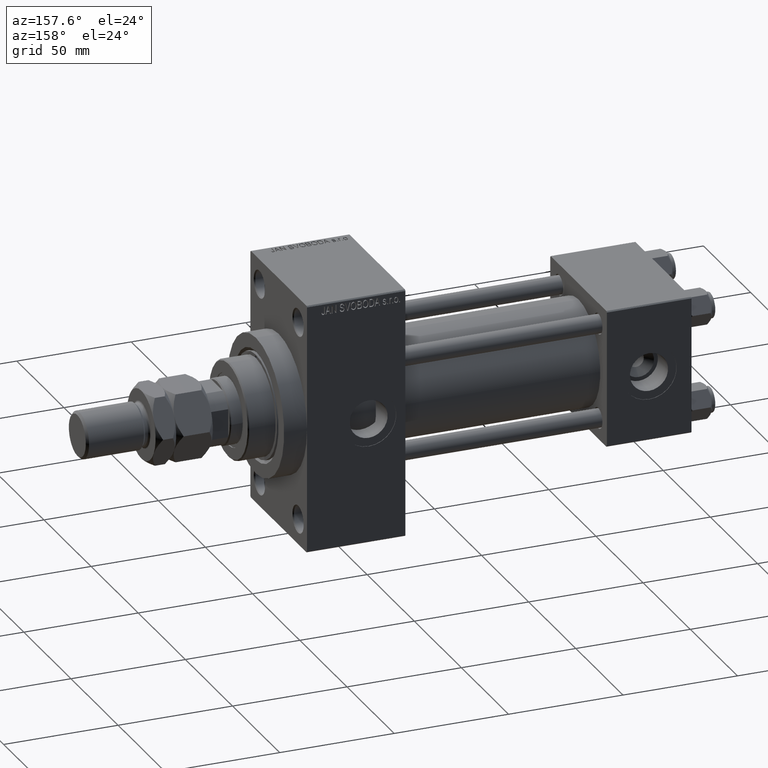
[diagram: clean part render]
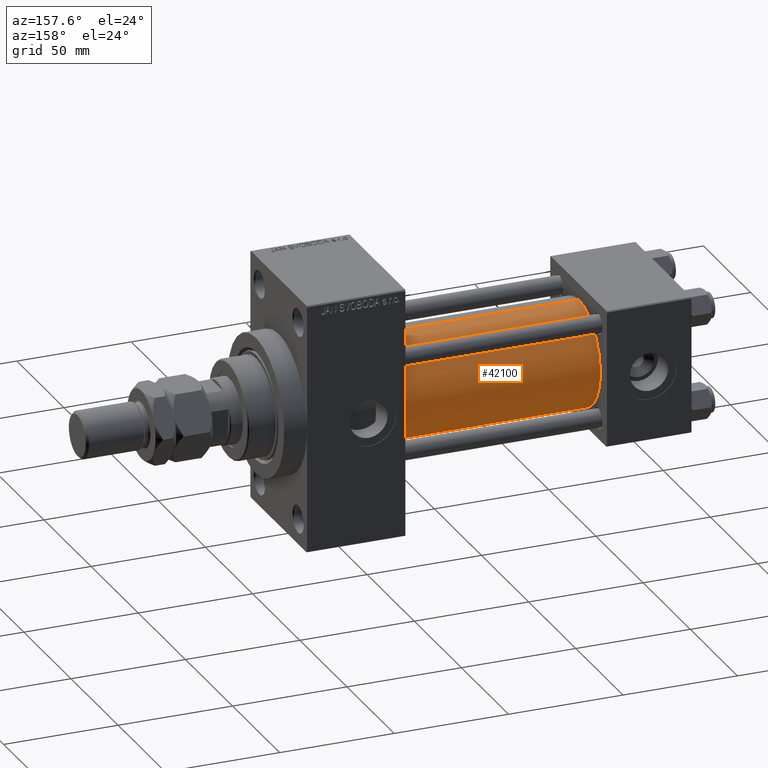
[diagram: same view with one face highlighted and labeled with its STEP entity id]
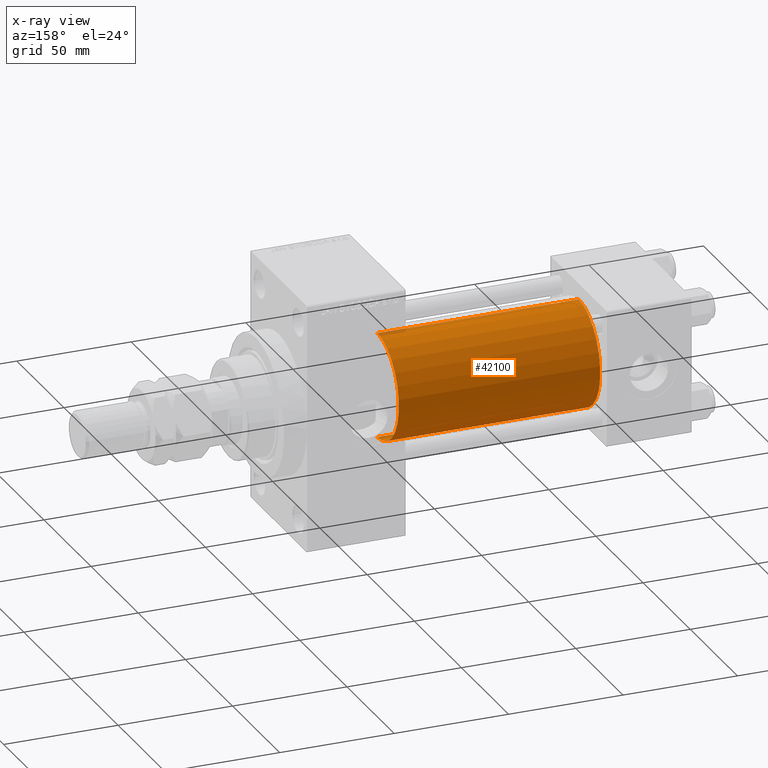
[diagram: x-ray of the same camera — body ghosted, the highlighted face saturated]
A machine part, auxiliary view. The second image highlights one B-rep face of the part: STEP entity #42100.
The next image is the same camera in x-ray: the body ghosted, the highlighted face saturated — about 1% of this face is hidden behind the body in this view.
In plain terms, the highlighted cylindrical surface (partial cylindrical patch) has radius 23 mm, axis along (-1, -0, -0).
Its self-contained STEP definition (entity closure, byte-faithful):
#1806 = DIRECTION ( 'NONE',  ( 1.000000000000000000, 0.000000000000000000, 0.000000000000000000 ) ) ;
#3795 = EDGE_CURVE ( 'NONE', #48667, #25684, #32341, .T. ) ;
#9769 = CARTESIAN_POINT ( 'NONE',  ( 125.0000000000000000, -2.602085213965210642E-15, 0.000000000000000000 ) ) ;
#10589 = EDGE_CURVE ( 'NONE', #29499, #46630, #17622, .T. ) ;
#13077 = EDGE_LOOP ( 'NONE', ( #45674, #22512, #16992, #41622 ) ) ;
#13893 = CARTESIAN_POINT ( 'NONE',  ( 125.0000000000000000, -2.602085213965210642E-15, 23.00000000000000000 ) ) ;
#14878 = DIRECTION ( 'NONE',  ( -1.000000000000000000, -0.000000000000000000, -0.000000000000000000 ) ) ;
#16992 = ORIENTED_EDGE ( 'NONE', *, *, #17514, .T. ) ;
#17514 = EDGE_CURVE ( 'NONE', #25684, #46630, #33186, .T. ) ;
#17622 = LINE ( 'NONE', #13893, #36254 ) ;
#19562 = AXIS2_PLACEMENT_3D ( 'NONE', #30458, #37671, #34928 ) ;
#19793 = FACE_OUTER_BOUND ( 'NONE', #13077, .T. ) ;
#20091 = CIRCLE ( 'NONE', #32766, 23.00000000000000000 ) ;
#20233 = DIRECTION ( 'NONE',  ( 0.000000000000000000, 0.000000000000000000, -1.000000000000000000 ) ) ;
#22512 = ORIENTED_EDGE ( 'NONE', *, *, #3795, .T. ) ;
#22871 = AXIS2_PLACEMENT_3D ( 'NONE', #48259, #44032, #25627 ) ;
#25627 = DIRECTION ( 'NONE',  ( 0.000000000000000000, 0.000000000000000000, 1.000000000000000000 ) ) ;
#25684 = VERTEX_POINT ( 'NONE', #40947 ) ;
#26484 = CYLINDRICAL_SURFACE ( 'NONE', #19562, 23.00000000000000000 ) ;
#26892 = CARTESIAN_POINT ( 'NONE',  ( 125.0000000000000000, 2.146024240737016609E-16, -23.00000000000000000 ) ) ;
#29116 = CARTESIAN_POINT ( 'NONE',  ( 125.0000000000000000, 2.146024240737016609E-16, -23.00000000000000000 ) ) ;
#29499 = VERTEX_POINT ( 'NONE', #36302 ) ;
#30458 = CARTESIAN_POINT ( 'NONE',  ( 125.0000000000000000, -2.602085213965210642E-15, 0.000000000000000000 ) ) ;
#31337 = EDGE_CURVE ( 'NONE', #48667, #29499, #20091, .T. ) ;
#32341 = LINE ( 'NONE', #29116, #39148 ) ;
#32766 = AXIS2_PLACEMENT_3D ( 'NONE', #9769, #1806, #20233 ) ;
#33186 = CIRCLE ( 'NONE', #22871, 23.00000000000000000 ) ;
#34928 = DIRECTION ( 'NONE',  ( 0.000000000000000000, 0.000000000000000000, 1.000000000000000000 ) ) ;
#36254 = VECTOR ( 'NONE', #44695, 1000.000000000000000 ) ;
#36302 = CARTESIAN_POINT ( 'NONE',  ( 125.0000000000000000, -2.602085213965210642E-15, 23.00000000000000000 ) ) ;
#37671 = DIRECTION ( 'NONE',  ( -1.000000000000000000, -0.000000000000000000, -0.000000000000000000 ) ) ;
#39148 = VECTOR ( 'NONE', #14878, 1000.000000000000000 ) ;
#40496 = CARTESIAN_POINT ( 'NONE',  ( 37.00000000000000711, -2.602085213965210642E-15, 23.00000000000000000 ) ) ;
#40947 = CARTESIAN_POINT ( 'NONE',  ( 37.00000000000000711, 2.146024240737016609E-16, -23.00000000000000000 ) ) ;
#41622 = ORIENTED_EDGE ( 'NONE', *, *, #10589, .F. ) ;
#42100 = ADVANCED_FACE ( 'NONE', ( #19793 ), #26484, .T. ) ;
#44032 = DIRECTION ( 'NONE',  ( 1.000000000000000000, -0.000000000000000000, 0.000000000000000000 ) ) ;
#44695 = DIRECTION ( 'NONE',  ( -1.000000000000000000, -0.000000000000000000, -0.000000000000000000 ) ) ;
#45674 = ORIENTED_EDGE ( 'NONE', *, *, #31337, .F. ) ;
#46630 = VERTEX_POINT ( 'NONE', #40496 ) ;
#48259 = CARTESIAN_POINT ( 'NONE',  ( 37.00000000000000711, -2.602085213965210642E-15, 0.000000000000000000 ) ) ;
#48667 = VERTEX_POINT ( 'NONE', #26892 ) ;